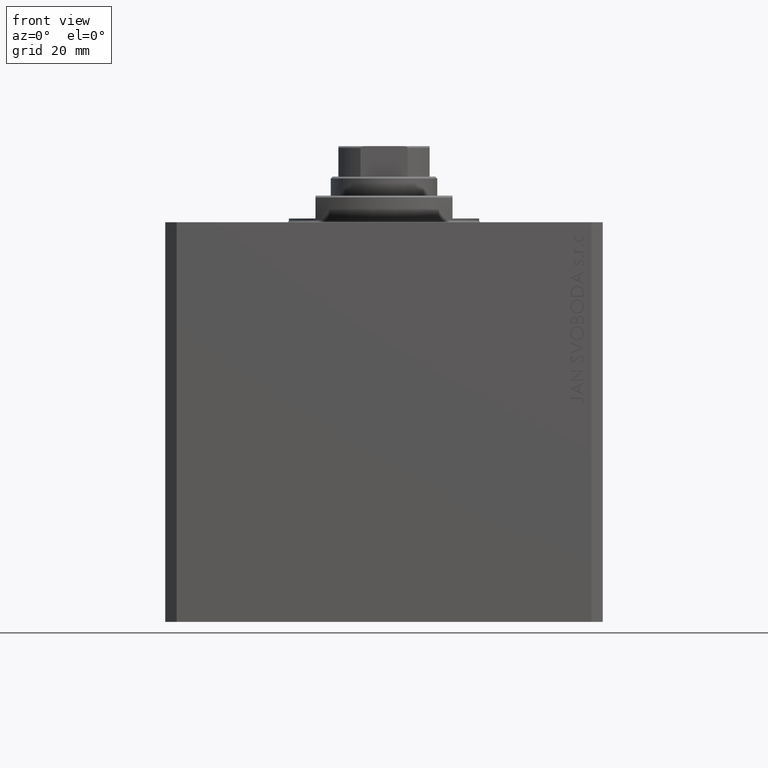
[diagram: clean part render]
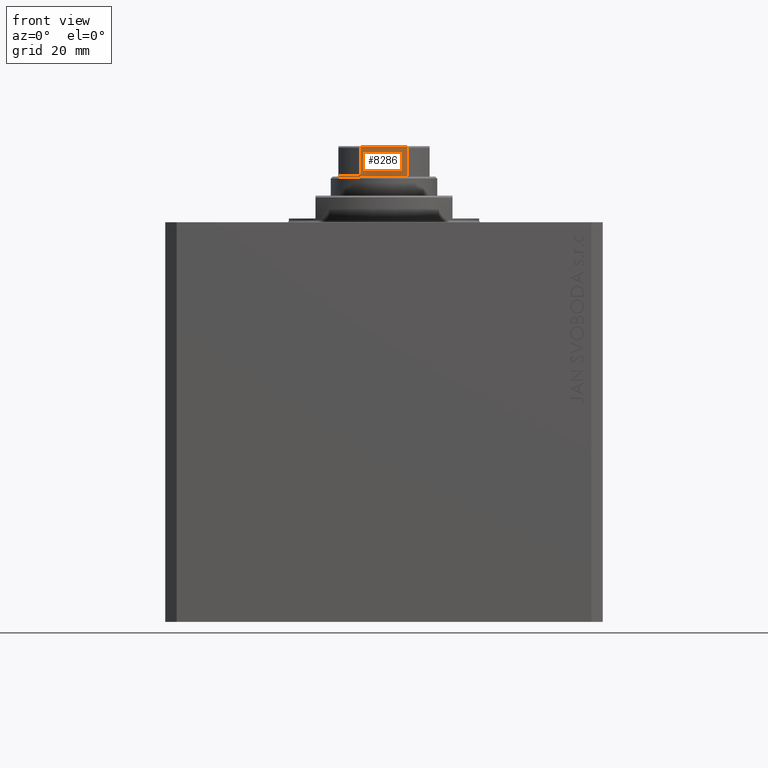
[diagram: same view with one face highlighted and labeled with its STEP entity id]
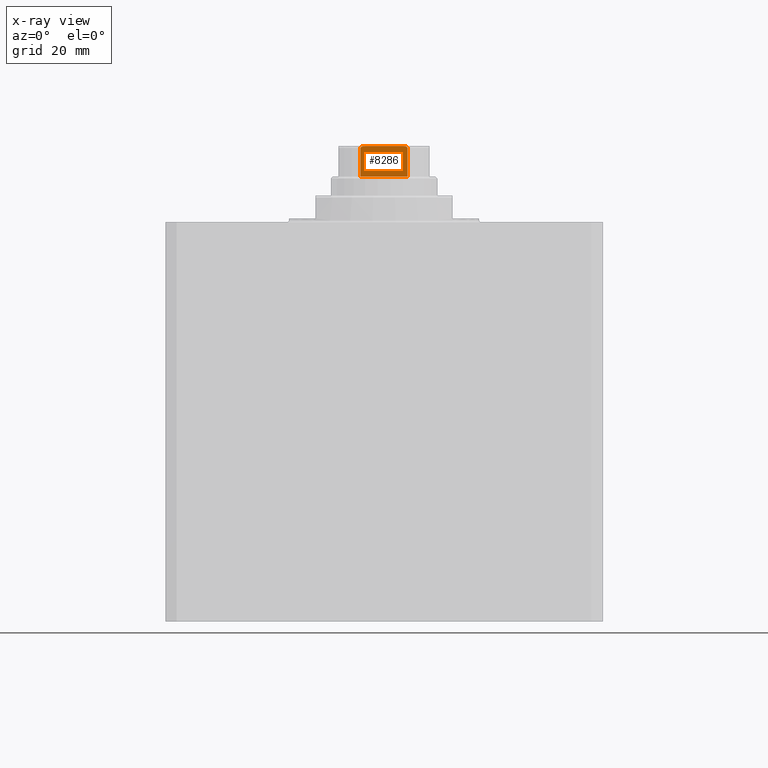
[diagram: x-ray of the same camera — body ghosted, the highlighted face saturated]
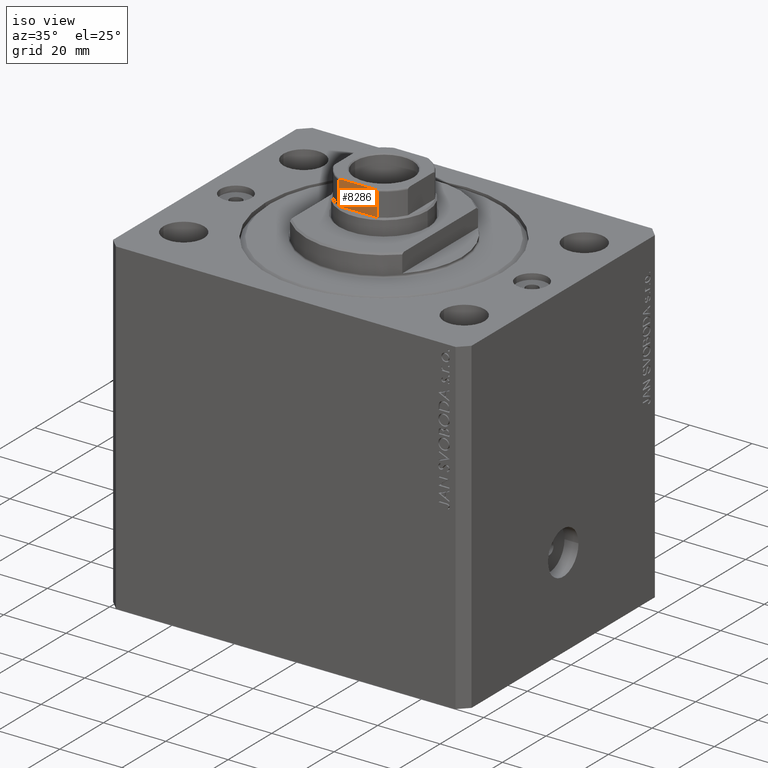
[diagram: same view with one face highlighted and labeled with its STEP entity id]
A machine part, front view. The second image highlights one B-rep face of the part: STEP entity #8286.
The next image is the same camera in x-ray: the body ghosted, the highlighted face saturated — about 0% of this face is hidden behind the body in this view.
A second angle (iso view) of the same face is appended — the face is thin or edge-on in the first view.
In plain terms, the highlighted planar face has unit normal (-0, 1, 0).
Its self-contained STEP definition (entity closure, byte-faithful):
#263 = AXIS2_PLACEMENT_3D ( 'NONE', #41128, #24028, #20660 ) ;
#735 = CARTESIAN_POINT ( 'NONE',  ( -5.793822051191352074, -12.00000000000000000, 106.9841735219943644 ) ) ;
#865 = EDGE_CURVE ( 'NONE', #27253, #33770, #2270, .T. ) ;
#1133 = LINE ( 'NONE', #11694, #3411 ) ;
#1357 = DIRECTION ( 'NONE',  ( 1.000000000000000000, 7.228014483236695816E-17, 0.000000000000000000 ) ) ;
#2270 = LINE ( 'NONE', #5637, #18247 ) ;
#3103 = CARTESIAN_POINT ( 'NONE',  ( 6.184658438426490434, -12.00000000000000000, 106.5999999999999943 ) ) ;
#3411 = VECTOR ( 'NONE', #1357, 1000.000000000000000 ) ;
#4036 = ORIENTED_EDGE ( 'NONE', *, *, #865, .T. ) ;
#5499 = CARTESIAN_POINT ( 'NONE',  ( -6.184658438426490434, -12.00000000000000000, 99.10000000000006537 ) ) ;
#5637 = CARTESIAN_POINT ( 'NONE',  ( 6.184658438426490434, -12.00000000000000000, -0.001000000000001000089 ) ) ;
#6505 = FACE_OUTER_BOUND ( 'NONE', #7678, .T. ) ;
#6968 = ORIENTED_EDGE ( 'NONE', *, *, #36474, .F. ) ;
#7259 = CARTESIAN_POINT ( 'NONE',  ( -4.999999999999992895, -12.00000000000000178, 107.0999999999999943 ) ) ;
#7678 = EDGE_LOOP ( 'NONE', ( #6968, #14658, #40721, #18630, #4036, #22792 ) ) ;
#8286 = ADVANCED_FACE ( 'NONE', ( #6505 ), #41352, .F. ) ;
#10400 = CARTESIAN_POINT ( 'NONE',  ( -6.184658438426487770, -12.00000000000000000, 106.6589821493407300 ) ) ;
#10620 = CARTESIAN_POINT ( 'NONE',  ( -6.184658438426490434, -12.00000000000000000, 106.5999999999999943 ) ) ;
#11694 = CARTESIAN_POINT ( 'NONE',  ( -11.99999999999999645, -12.00000000000000178, 99.09999999999999432 ) ) ;
#12114 = VERTEX_POINT ( 'NONE', #14292 ) ;
#12135 = EDGE_CURVE ( 'NONE', #38281, #18911, #24634, .T. ) ;
#14041 = VECTOR ( 'NONE', #38361, 1000.000000000000000 ) ;
#14292 = CARTESIAN_POINT ( 'NONE',  ( 4.999999999999993783, -12.00000000000000178, 107.0999999999999943 ) ) ;
#14658 = ORIENTED_EDGE ( 'NONE', *, *, #37221, .T. ) ;
#14811 = CARTESIAN_POINT ( 'NONE',  ( 6.184658438426490434, -12.00000000000000000, 106.5999999999999943 ) ) ;
#16423 = B_SPLINE_CURVE_WITH_KNOTS ( 'NONE', 3,
 ( #7259, #20538, #27944, #735, #27496, #21204, #16940, #41221, #10400, #10620 ),
 .UNSPECIFIED., .F., .F.,
 ( 4, 2, 2, 2, 4 ),
 ( 0.000000000000000000, 0.0006877128613558533337, 0.001031569292033773007, 0.001203497507372734091, 0.001375425722711694958 ),
 .UNSPECIFIED. ) ;
#16541 = VECTOR ( 'NONE', #17944, 1000.000000000000000 ) ;
#16940 = CARTESIAN_POINT ( 'NONE',  ( -6.091027642353957106, -12.00000000000000178, 106.8080088155617204 ) ) ;
#17037 = CARTESIAN_POINT ( 'NONE',  ( 5.230795946637837979, -12.00000000000000178, 107.0999999999999943 ) ) ;
#17944 = DIRECTION ( 'NONE',  ( 1.000000000000000000, 7.228014483236695816E-17, 0.000000000000000000 ) ) ;
#18126 = CARTESIAN_POINT ( 'NONE',  ( -6.184658438426490434, -12.00000000000000000, -0.001000000000001000089 ) ) ;
#18247 = VECTOR ( 'NONE', #34926, 1000.000000000000000 ) ;
#18630 = ORIENTED_EDGE ( 'NONE', *, *, #23112, .T. ) ;
#18723 = CARTESIAN_POINT ( 'NONE',  ( -6.184658438426490434, -12.00000000000000000, 106.5999999999999943 ) ) ;
#18911 = VERTEX_POINT ( 'NONE', #18723 ) ;
#20538 = CARTESIAN_POINT ( 'NONE',  ( -5.230809753656814998, -12.00000000000000533, 107.1000000000000227 ) ) ;
#20660 = DIRECTION ( 'NONE',  ( -1.000000000000000000, -7.228014483236695816E-17, 0.000000000000000000 ) ) ;
#21204 = CARTESIAN_POINT ( 'NONE',  ( -6.045866546018587862, -12.00000000000000000, 106.8461068616299343 ) ) ;
#22792 = ORIENTED_EDGE ( 'NONE', *, *, #26288, .T. ) ;
#23112 = EDGE_CURVE ( 'NONE', #38281, #27253, #1133, .T. ) ;
#23446 = B_SPLINE_CURVE_WITH_KNOTS ( 'NONE', 3,
 ( #3103, #23567, #43809, #26726, #27378, #30733, #40670, #27154, #17037, #37281 ),
 .UNSPECIFIED., .F., .F.,
 ( 4, 2, 2, 2, 4 ),
 ( 0.000000000000000000, 0.0001740189231935439771, 0.0003480378463870879542, 0.0006960756927741780769, 0.001392151385548346830 ),
 .UNSPECIFIED. ) ;
#23567 = CARTESIAN_POINT ( 'NONE',  ( 6.184658438426491323, -12.00000000000000355, 106.6589344020393781 ) ) ;
#24028 = DIRECTION ( 'NONE',  ( -7.228014483236695816E-17, 1.000000000000000000, 0.000000000000000000 ) ) ;
#24634 = LINE ( 'NONE', #18126, #14041 ) ;
#26288 = EDGE_CURVE ( 'NONE', #33770, #12114, #23446, .T. ) ;
#26559 = VERTEX_POINT ( 'NONE', #32748 ) ;
#26726 = CARTESIAN_POINT ( 'NONE',  ( 6.091003570118822097, -11.99999999999999822, 106.8080862465981227 ) ) ;
#27154 = CARTESIAN_POINT ( 'NONE',  ( 5.458892612163318780, -11.99999999999999822, 107.0796099716497736 ) ) ;
#27253 = VERTEX_POINT ( 'NONE', #44471 ) ;
#27378 = CARTESIAN_POINT ( 'NONE',  ( 6.046414714222229314, -11.99999999999999822, 106.8457872300292877 ) ) ;
#27496 = CARTESIAN_POINT ( 'NONE',  ( -5.903192932991092157, -12.00000000000000355, 106.9415152347680333 ) ) ;
#27826 = CARTESIAN_POINT ( 'NONE',  ( -11.99999999999999645, -12.00000000000000178, 107.0999999999999943 ) ) ;
#27944 = CARTESIAN_POINT ( 'NONE',  ( -5.459934723612532181, -12.00000000000000000, 107.0794964115812036 ) ) ;
#30733 = CARTESIAN_POINT ( 'NONE',  ( 5.900889097622412649, -12.00000000000000178, 106.9429613869932751 ) ) ;
#31416 = LINE ( 'NONE', #27826, #16541 ) ;
#32748 = CARTESIAN_POINT ( 'NONE',  ( -4.999999999999992895, -12.00000000000000178, 107.0999999999999943 ) ) ;
#33770 = VERTEX_POINT ( 'NONE', #14811 ) ;
#34926 = DIRECTION ( 'NONE',  ( -0.000000000000000000, -0.000000000000000000, 1.000000000000000000 ) ) ;
#36474 = EDGE_CURVE ( 'NONE', #26559, #12114, #31416, .T. ) ;
#37221 = EDGE_CURVE ( 'NONE', #26559, #18911, #16423, .T. ) ;
#37281 = CARTESIAN_POINT ( 'NONE',  ( 4.999999999999993783, -12.00000000000000178, 107.0999999999999943 ) ) ;
#38281 = VERTEX_POINT ( 'NONE', #5499 ) ;
#38361 = DIRECTION ( 'NONE',  ( -0.000000000000000000, -0.000000000000000000, 1.000000000000000000 ) ) ;
#40670 = CARTESIAN_POINT ( 'NONE',  ( 5.792513940493502211, -12.00000000000000178, 106.9846382036009373 ) ) ;
#40721 = ORIENTED_EDGE ( 'NONE', *, *, #12135, .F. ) ;
#41128 = CARTESIAN_POINT ( 'NONE',  ( -11.99999999999999645, -12.00000000000000178, 107.0999999999999943 ) ) ;
#41221 = CARTESIAN_POINT ( 'NONE',  ( -6.160856115322534521, -12.00000000000000355, 106.7149782197478771 ) ) ;
#41352 = PLANE ( 'NONE',  #263 ) ;
#43809 = CARTESIAN_POINT ( 'NONE',  ( 6.161088279078729357, -12.00000000000000000, 106.7146234191509961 ) ) ;
#44471 = CARTESIAN_POINT ( 'NONE',  ( 6.184658438426490434, -12.00000000000000000, 99.10000000000006537 ) ) ;